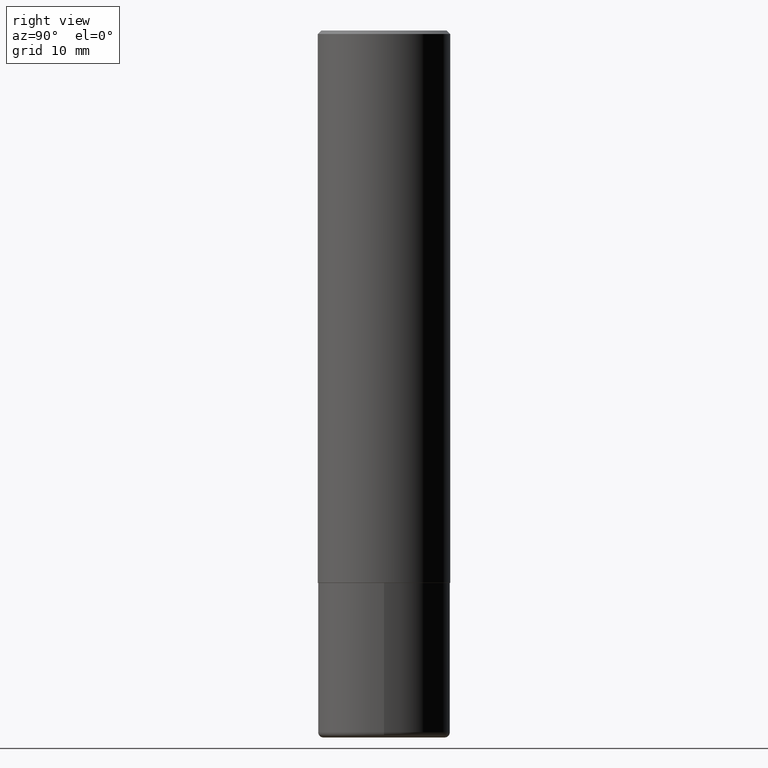
[diagram: clean part render]
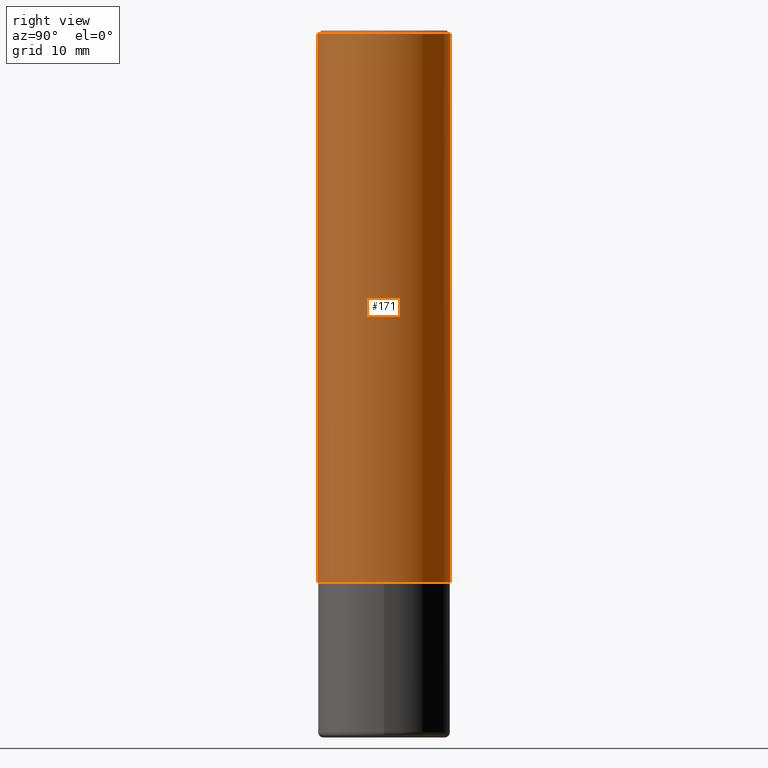
[diagram: same view with one face highlighted and labeled with its STEP entity id]
A machine part, right view. The second image highlights one B-rep face of the part: STEP entity #171.
In plain terms, the highlighted cylindrical surface (partial cylindrical patch) has radius 9.525 mm, axis along (-0, 0, 1).
Its self-contained STEP definition (entity closure, byte-faithful):
#14 = EDGE_LOOP ( 'NONE', ( #65, #73, #303, #338 ) ) ;
#17 = LINE ( 'NONE', #78, #412 ) ;
#19 = DIRECTION ( 'NONE',  ( -6.982962677686265922E-15, -1.000000000000000000, 3.494488891895535640E-15 ) ) ;
#21 = DIRECTION ( 'NONE',  ( -2.445996322747269804E-29, 3.490725905101792415E-15, 1.000000000000000000 ) ) ;
#35 = CYLINDRICAL_SURFACE ( 'NONE', #197, 0.3750000000000002220 ) ;
#44 = CARTESIAN_POINT ( 'NONE',  ( -2.618611004132276258E-15, -0.3750000000000113243, -3.123999999999999222 ) ) ;
#50 = CARTESIAN_POINT ( 'NONE',  ( -2.618611004132351594E-15, -0.3750000000000002220, 1.309022214413172994E-15 ) ) ;
#65 = ORIENTED_EDGE ( 'NONE', *, *, #232, .T. ) ;
#73 = ORIENTED_EDGE ( 'NONE', *, *, #331, .T. ) ;
#75 = DIRECTION ( 'NONE',  ( -6.982962677686265922E-15, -1.000000000000000000, 2.913971193241877611E-15 ) ) ;
#78 = CARTESIAN_POINT ( 'NONE',  ( 2.664535259100376880E-15, 0.3750000000000002220, -1.309022214413172994E-15 ) ) ;
#81 = CARTESIAN_POINT ( 'NONE',  ( 4.891992645494561398E-31, -6.981451810203614264E-17, -0.02000000000000008715 ) ) ;
#85 = EDGE_CURVE ( 'NONE', #240, #340, #391, .T. ) ;
#134 = DIRECTION ( 'NONE',  ( -2.445996322747269804E-29, 3.490725905101792415E-15, 1.000000000000000000 ) ) ;
#138 = VECTOR ( 'NONE', #208, 39.37007874015748143 ) ;
#141 = LINE ( 'NONE', #50, #138 ) ;
#145 = DIRECTION ( 'NONE',  ( -2.445996322747270084E-29, 3.490725905101792021E-15, 1.000000000000000000 ) ) ;
#169 = DIRECTION ( 'NONE',  ( -6.982962677686266711E-15, -1.000000000000000000, 3.490725905101792415E-15 ) ) ;
#171 = ADVANCED_FACE ( 'NONE', ( #367 ), #35, .T. ) ;
#174 = CARTESIAN_POINT ( 'NONE',  ( -2.572686749164324336E-15, -0.3750000000000001665, -0.01999999999999877570 ) ) ;
#197 = AXIS2_PLACEMENT_3D ( 'NONE', #298, #134, #169 ) ;
#208 = DIRECTION ( 'NONE',  ( -2.445996322747270084E-29, 3.490725905101792021E-15, 1.000000000000000000 ) ) ;
#214 = DIRECTION ( 'NONE',  ( -2.445996322747269804E-29, 3.490725905101792415E-15, 1.000000000000000000 ) ) ;
#232 = EDGE_CURVE ( 'NONE', #364, #399, #411, .T. ) ;
#240 = VERTEX_POINT ( 'NONE', #174 ) ;
#243 = AXIS2_PLACEMENT_3D ( 'NONE', #317, #21, #75 ) ;
#270 = EDGE_CURVE ( 'NONE', #364, #240, #141, .T. ) ;
#298 = CARTESIAN_POINT ( 'NONE',  ( 0.000000000000000000, 0.000000000000000000, 0.000000000000000000 ) ) ;
#303 = ORIENTED_EDGE ( 'NONE', *, *, #85, .F. ) ;
#317 = CARTESIAN_POINT ( 'NONE',  ( 7.641292512262471991E-29, -1.090502772753799986E-14, -3.124000000000000554 ) ) ;
#331 = EDGE_CURVE ( 'NONE', #399, #340, #17, .T. ) ;
#338 = ORIENTED_EDGE ( 'NONE', *, *, #270, .F. ) ;
#340 = VERTEX_POINT ( 'NONE', #341 ) ;
#341 = CARTESIAN_POINT ( 'NONE',  ( 2.618611004132351200E-15, 0.3750000000000000555, -0.02000000000000139513 ) ) ;
#360 = AXIS2_PLACEMENT_3D ( 'NONE', #81, #214, #19 ) ;
#364 = VERTEX_POINT ( 'NONE', #44 ) ;
#367 = FACE_OUTER_BOUND ( 'NONE', #14, .T. ) ;
#391 = CIRCLE ( 'NONE', #360, 0.3750000000000001110 ) ;
#399 = VERTEX_POINT ( 'NONE', #415 ) ;
#411 = CIRCLE ( 'NONE', #243, 0.3750000000000003886 ) ;
#412 = VECTOR ( 'NONE', #145, 39.37007874015748143 ) ;
#415 = CARTESIAN_POINT ( 'NONE',  ( 2.664535259100415534E-15, 0.3749999999999894529, -3.124000000000001442 ) ) ;